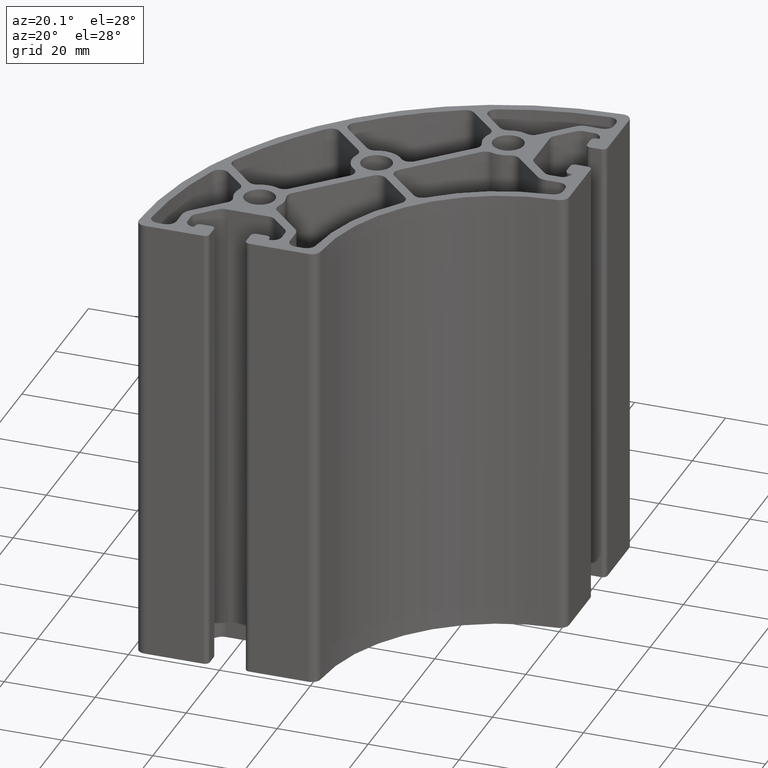
[diagram: clean part render]
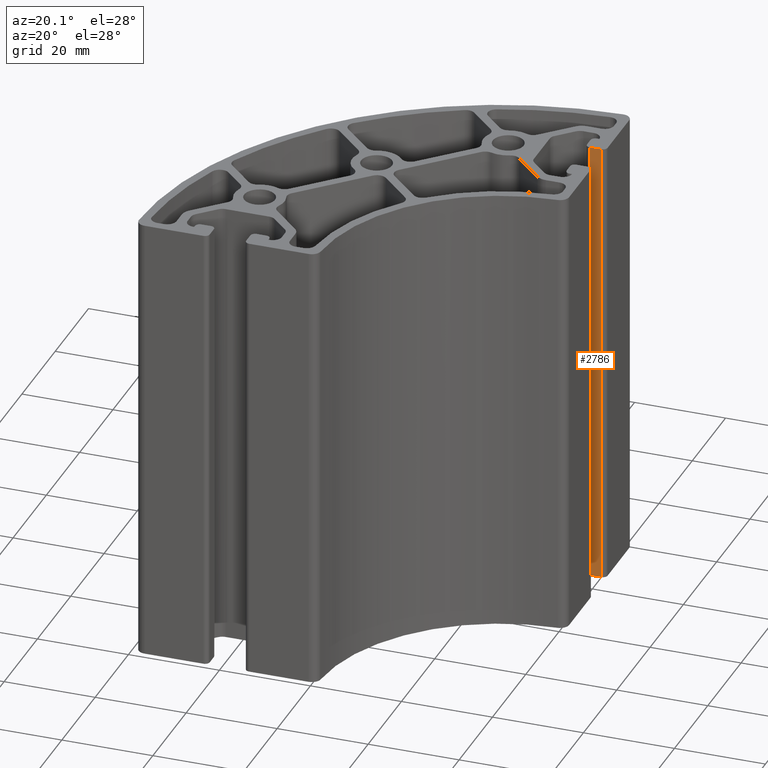
[diagram: same view with one face highlighted and labeled with its STEP entity id]
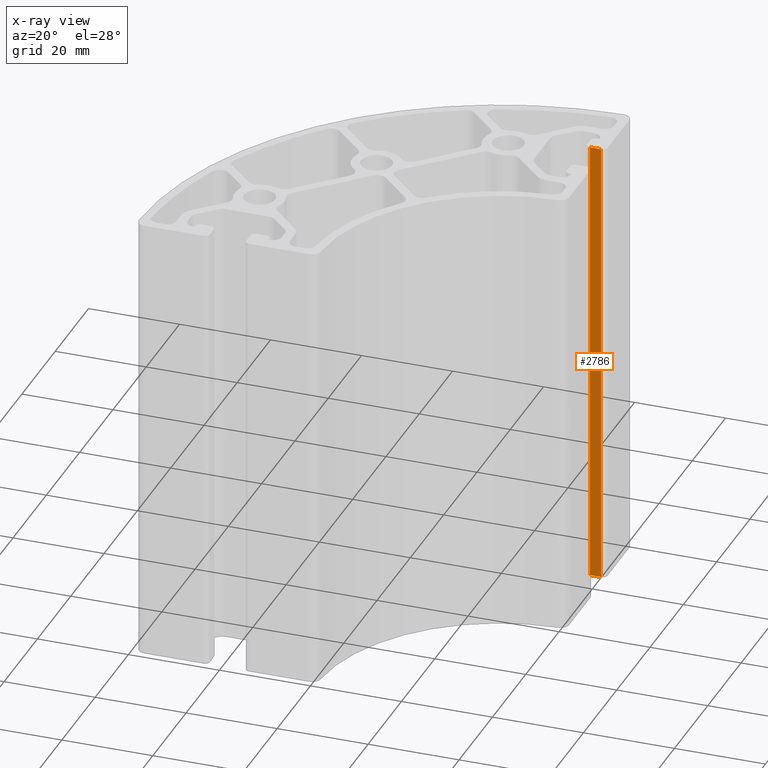
[diagram: x-ray of the same camera — body ghosted, the highlighted face saturated]
A machine part, auxiliary view. The second image highlights one B-rep face of the part: STEP entity #2786.
The next image is the same camera in x-ray: the body ghosted, the highlighted face saturated — about 0% of this face is hidden behind the body in this view.
In plain terms, the highlighted planar face has unit normal (0, -1, 0).
Its self-contained STEP definition (entity closure, byte-faithful):
#381=FACE_OUTER_BOUND('',#525,.T.);
#525=EDGE_LOOP('',(#2142,#2143,#2144,#2145));
#735=LINE('',#4564,#983);
#736=LINE('',#4567,#984);
#737=LINE('',#4569,#985);
#738=LINE('',#4570,#986);
#983=VECTOR('',#3715,100.);
#984=VECTOR('',#3718,2.43376612254418);
#985=VECTOR('',#3719,2.43376612254418);
#986=VECTOR('',#3720,100.);
#1268=VERTEX_POINT('',#4560);
#1269=VERTEX_POINT('',#4562);
#1270=VERTEX_POINT('',#4566);
#1271=VERTEX_POINT('',#4568);
#1635=EDGE_CURVE('',#1268,#1269,#735,.T.);
#1636=EDGE_CURVE('',#1268,#1270,#736,.T.);
#1637=EDGE_CURVE('',#1271,#1269,#737,.T.);
#1638=EDGE_CURVE('',#1270,#1271,#738,.T.);
#2142=ORIENTED_EDGE('',*,*,#1636,.F.);
#2143=ORIENTED_EDGE('',*,*,#1635,.T.);
#2144=ORIENTED_EDGE('',*,*,#1637,.F.);
#2145=ORIENTED_EDGE('',*,*,#1638,.F.);
#2669=PLANE('',#3053);
#2786=ADVANCED_FACE('',(#381),#2669,.T.);
#3053=AXIS2_PLACEMENT_3D('',#4565,#3716,#3717);
#3715=DIRECTION('',(0.,0.,1.));
#3716=DIRECTION('center_axis',(0.,-1.,0.));
#3717=DIRECTION('ref_axis',(1.,0.,0.));
#3718=DIRECTION('',(-1.,0.,0.));
#3719=DIRECTION('',(1.,0.,0.));
#3720=DIRECTION('',(0.,0.,1.));
#4560=CARTESIAN_POINT('',(41.3838250630404,21.4947287878734,0.));
#4562=CARTESIAN_POINT('',(41.3838250630404,21.4947287878734,100.));
#4564=CARTESIAN_POINT('',(41.3838250630404,21.4947287878734,0.));
#4565=CARTESIAN_POINT('Origin',(38.9500589404962,21.4947287878734,0.));
#4566=CARTESIAN_POINT('',(38.9500589404962,21.4947287878734,0.));
#4567=CARTESIAN_POINT('',(41.3838250630404,21.4947287878734,0.));
#4568=CARTESIAN_POINT('',(38.9500589404962,21.4947287878734,100.));
#4569=CARTESIAN_POINT('',(41.3838250630404,21.4947287878734,100.));
#4570=CARTESIAN_POINT('',(38.9500589404962,21.4947287878734,0.));